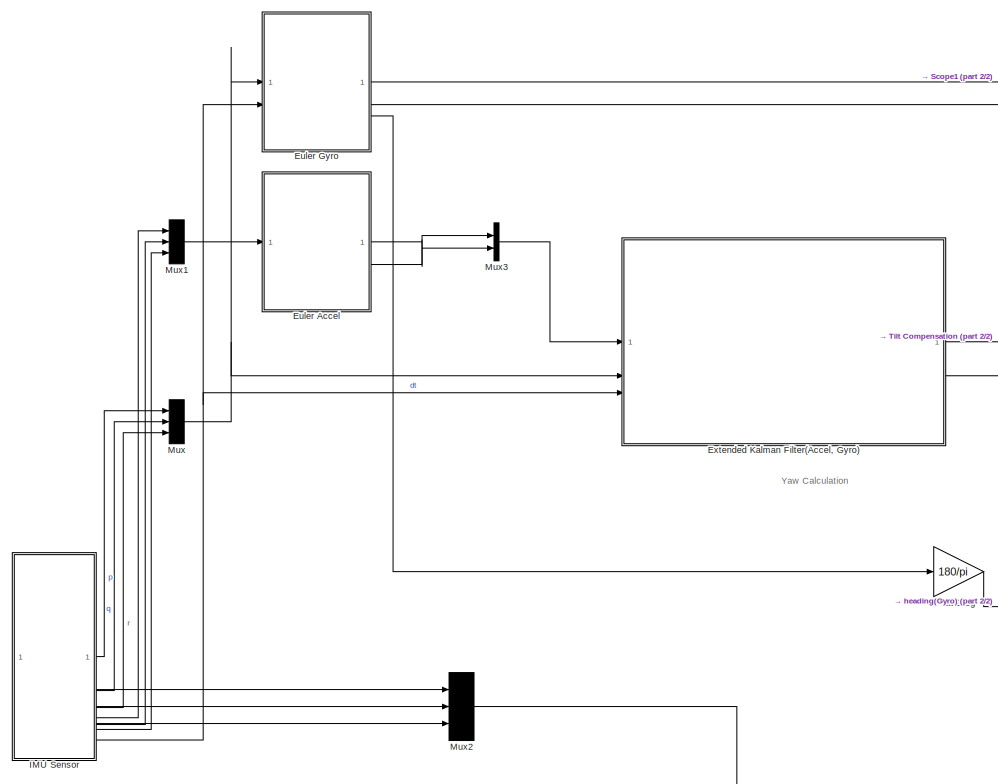
[diagram: root canvas - part 1/2, left side, full height]
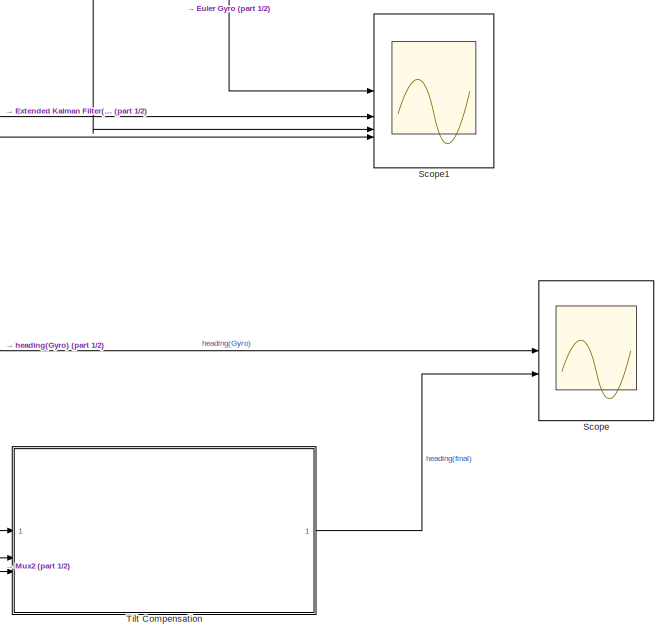
[diagram: root canvas - part 2/2, middle right region]
MODEL slx_b5a51b9716bc
KIND model
CONFIG AbsTol = auto
CONFIG EnableMultiTasking = off
CONFIG FixedStep = auto
CONFIG MaxStep = auto
CONFIG MinStep = auto
CONFIG RelTol = 1e-3
CONFIG SampleTimeConstraint = Unconstrained
CONFIG SolverName = VariableStepAuto
CONFIG StartTime = 0.0
CONFIG StopTime = 220
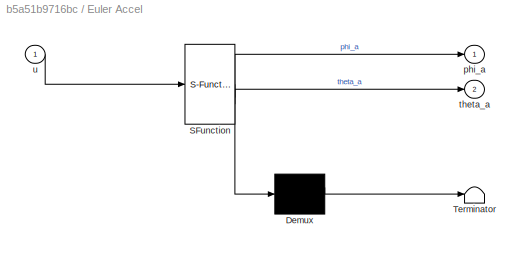
BLOCK [SubSystem] Euler Accel
  ErrorFcn = Stateflow.Translate.translate
  LibrarySourceBlock = simulink/User-Defined\nFunctions/MATLAB Function
  PermitHierarchicalResolution = ExplicitOnly
  SFBlockType = MATLAB Function
  TreatAsAtomicUnit = on
BLOCK [Demux] Euler Accel/ Demux 
  Outputs = 1
BLOCK [S-Function] Euler Accel/ SFunction 
  EnableBusSupport = on
  FunctionName = sf_sfun
  PortCounts = [1 3]
  SFcnIsStateOwnerBlock = off
  SFunctionDeploymentMode = off
  Tag = Stateflow S-Function 3
BLOCK [Terminator] Euler Accel/ Terminator 
BLOCK [Outport] Euler Accel/phi_a
BLOCK [Outport] Euler Accel/theta_a
  Port = 2
BLOCK [Inport] Euler Accel/u
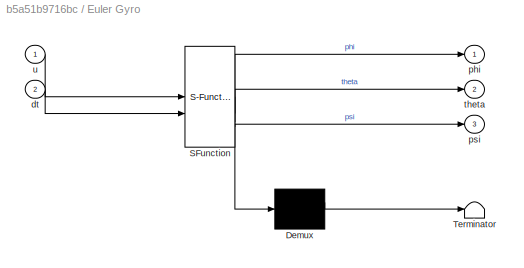
BLOCK [SubSystem] Euler Gyro
  ErrorFcn = Stateflow.Translate.translate
  LibrarySourceBlock = simulink/User-Defined\nFunctions/MATLAB Function
  PermitHierarchicalResolution = ExplicitOnly
  SFBlockType = MATLAB Function
  TreatAsAtomicUnit = on
BLOCK [Demux] Euler Gyro/ Demux 
  Outputs = 1
BLOCK [S-Function] Euler Gyro/ SFunction 
  EnableBusSupport = on
  FunctionName = sf_sfun
  PortCounts = [2 4]
  SFcnIsStateOwnerBlock = off
  SFunctionDeploymentMode = off
  Tag = Stateflow S-Function 1
BLOCK [Terminator] Euler Gyro/ Terminator 
BLOCK [Inport] Euler Gyro/dt
  Port = 2
BLOCK [Outport] Euler Gyro/phi
BLOCK [Outport] Euler Gyro/psi
  Port = 3
BLOCK [Outport] Euler Gyro/theta
  Port = 2
BLOCK [Inport] Euler Gyro/u
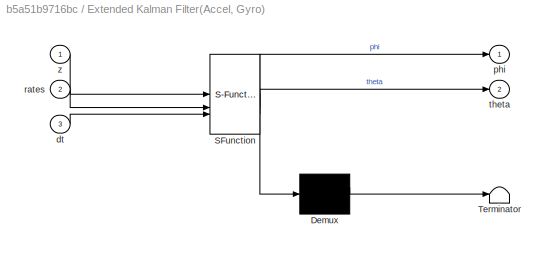
BLOCK [SubSystem] Extended Kalman Filter(Accel, Gyro)
  ErrorFcn = Stateflow.Translate.translate
  LibrarySourceBlock = simulink/User-Defined\nFunctions/MATLAB Function
  PermitHierarchicalResolution = ExplicitOnly
  SFBlockType = MATLAB Function
  TreatAsAtomicUnit = on
BLOCK [Demux] Extended Kalman Filter(Accel, Gyro)/ Demux 
  Outputs = 1
BLOCK [S-Function] Extended Kalman Filter(Accel, Gyro)/ SFunction 
  EnableBusSupport = on
  FunctionName = sf_sfun
  PortCounts = [3 3]
  SFcnIsStateOwnerBlock = off
  SFunctionDeploymentMode = off
  Tag = Stateflow S-Function 2
BLOCK [Terminator] Extended Kalman Filter(Accel, Gyro)/ Terminator 
BLOCK [Inport] Extended Kalman Filter(Accel, Gyro)/dt
  Port = 3
BLOCK [Outport] Extended Kalman Filter(Accel, Gyro)/phi
BLOCK [Inport] Extended Kalman Filter(Accel, Gyro)/rates
  Port = 2
BLOCK [Outport] Extended Kalman Filter(Accel, Gyro)/theta
  Port = 2
BLOCK [Inport] Extended Kalman Filter(Accel, Gyro)/z
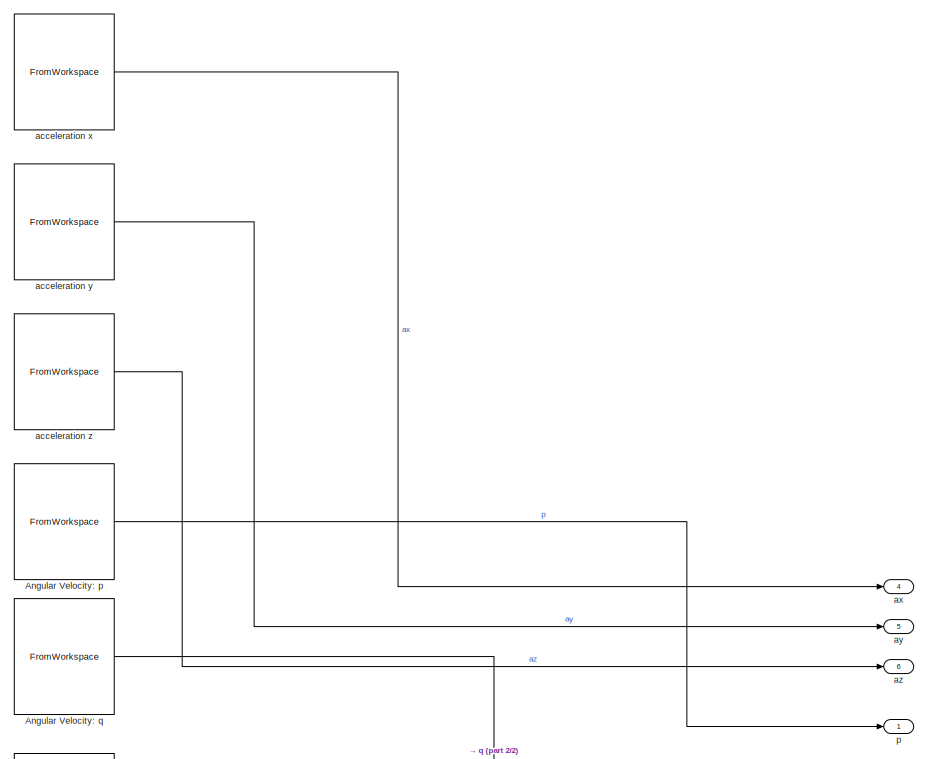
[diagram: IMU Sensor - part 1/2, full width, top band]
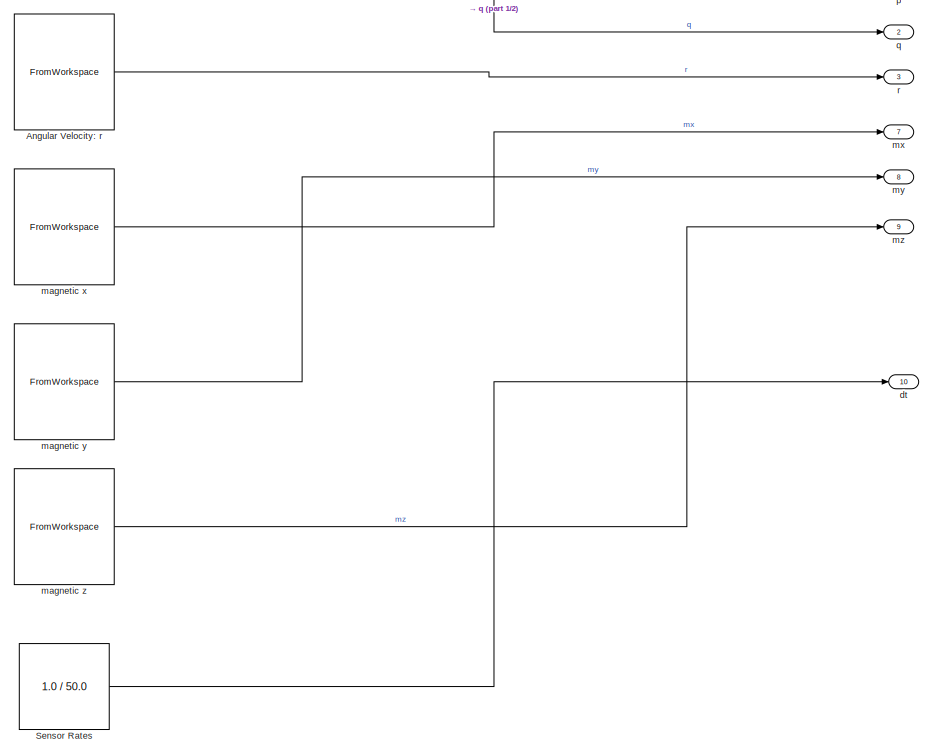
[diagram: IMU Sensor - part 2/2, full width, bottom band]
BLOCK [SubSystem] IMU Sensor
BLOCK [FromWorkspace] IMU Sensor/Angular Velocity: p
  SampleTime = 0.02
  VariableName = p
BLOCK [FromWorkspace] IMU Sensor/Angular Velocity: q
  SampleTime = 0.02
  VariableName = q
BLOCK [FromWorkspace] IMU Sensor/Angular Velocity: r
  SampleTime = 0.02
  VariableName = r
BLOCK [Constant] IMU Sensor/Sensor Rates
  Value = 1.0 / 50.0
BLOCK [FromWorkspace] IMU Sensor/acceleration x
  SampleTime = 0.02
  VariableName = ax
BLOCK [FromWorkspace] IMU Sensor/acceleration y
  SampleTime = 0.02
  VariableName = ay
BLOCK [FromWorkspace] IMU Sensor/acceleration z
  SampleTime = 0.02
  VariableName = az
BLOCK [Outport] IMU Sensor/ax
  Port = 4
BLOCK [Outport] IMU Sensor/ay
  Port = 5
BLOCK [Outport] IMU Sensor/az
  Port = 6
BLOCK [Outport] IMU Sensor/dt
  Port = 10
BLOCK [FromWorkspace] IMU Sensor/magnetic x
  SampleTime = 0.02
  VariableName = mx
BLOCK [FromWorkspace] IMU Sensor/magnetic y
  SampleTime = 0.02
  VariableName = my
BLOCK [FromWorkspace] IMU Sensor/magnetic z
  SampleTime = 0.02
  VariableName = mz
BLOCK [Outport] IMU Sensor/mx
  Port = 7
BLOCK [Outport] IMU Sensor/my
  Port = 8
BLOCK [Outport] IMU Sensor/mz
  Port = 9
BLOCK [Outport] IMU Sensor/p
BLOCK [Outport] IMU Sensor/q
  Port = 2
BLOCK [Outport] IMU Sensor/r
  Port = 3
BLOCK [Mux] Mux
  DisplayOption = signals
  Inputs = 3
BLOCK [Mux] Mux1
  DisplayOption = signals
  Inputs = 3
BLOCK [Mux] Mux2
  DisplayOption = signals
  Inputs = 3
BLOCK [Mux] Mux3
  DisplayOption = bar
  Inputs = 2
BLOCK [Scope] Scope
  Floating = off
  NumInputPorts = 2
  ScopeSpecificationString = Simulink.scopes.TimeScopeBlockCfg('CurrentConfiguration', extmgr.ConfigurationSet(extmgr.Configuration('Core','General UI',true),extmgr.Configuration('Core','Source UI',true),extmgr.Configuration('Sources','WiredSimulink',true),extmgr.Configuration('Visuals','Time Domain',true,'SerializedDisplays',{struct('MinYLimReal','-4680.40662','MaxYLimReal','916.21488','YLabelReal','','MinYLimMag','  0.00000...<+1722ch>
BLOCK [Scope] Scope1
  Floating = off
  NumInputPorts = 4
  ScopeSpecificationString = Simulink.scopes.TimeScopeBlockCfg('CurrentConfiguration', extmgr.ConfigurationSet(extmgr.Configuration('Core','General UI',true),extmgr.Configuration('Core','Source UI',true),extmgr.Configuration('Sources','WiredSimulink',true,'DataLoggingVariableName','ScopeData1'),extmgr.Configuration('Visuals','Time Domain',true,'SerializedDisplays',{struct('MinYLimReal','-136.19616','MaxYLimReal','18.849','YLa...<+1511ch>
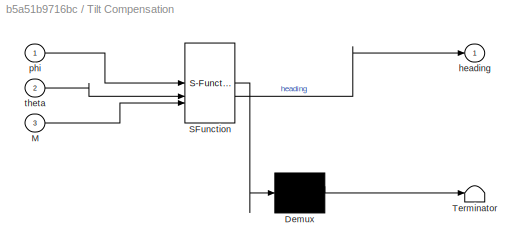
BLOCK [SubSystem] Tilt Compensation
  ErrorFcn = Stateflow.Translate.translate
  LibrarySourceBlock = simulink/User-Defined\nFunctions/MATLAB Function
  PermitHierarchicalResolution = ExplicitOnly
  SFBlockType = MATLAB Function
  TreatAsAtomicUnit = on
BLOCK [Demux] Tilt Compensation/ Demux 
  Outputs = 1
BLOCK [S-Function] Tilt Compensation/ SFunction 
  EnableBusSupport = on
  FunctionName = sf_sfun
  PortCounts = [3 2]
  SFcnIsStateOwnerBlock = off
  SFunctionDeploymentMode = off
  Tag = Stateflow S-Function 4
BLOCK [Terminator] Tilt Compensation/ Terminator 
BLOCK [Inport] Tilt Compensation/M
  Port = 3
BLOCK [Outport] Tilt Compensation/heading
BLOCK [Inport] Tilt Compensation/phi
BLOCK [Inport] Tilt Compensation/theta
  Port = 2
BLOCK [Gain] rad2deg
  Gain = 180/pi
ANNOTATION (root): Yaw Calculation
LINE Euler Accel:1 -> Mux3:1
LINE Euler Accel:2 -> Mux3:2
LINE Euler Gyro:1 -> Scope1:1
LINE Euler Gyro:2 -> Scope1:3
LINE Euler Gyro:3 -> rad2deg:1
NET Extended Kalman Filter(Accel, Gyro):1 -> Scope1:2, Tilt Compensation:1
NET Extended Kalman Filter(Accel, Gyro):2 -> Scope1:4, Tilt Compensation:2
LINE IMU Sensor/Angular Velocity: p:1 -> IMU Sensor/p:1
LINE IMU Sensor/Angular Velocity: q:1 -> IMU Sensor/q:1
LINE IMU Sensor/Angular Velocity: r:1 -> IMU Sensor/r:1
LINE IMU Sensor/Sensor Rates:1 -> IMU Sensor/dt:1
LINE IMU Sensor/acceleration x:1 -> IMU Sensor/ax:1
LINE IMU Sensor/acceleration y:1 -> IMU Sensor/ay:1
LINE IMU Sensor/acceleration z:1 -> IMU Sensor/az:1
LINE IMU Sensor/magnetic x:1 -> IMU Sensor/mx:1
LINE IMU Sensor/magnetic y:1 -> IMU Sensor/my:1
LINE IMU Sensor/magnetic z:1 -> IMU Sensor/mz:1
LINE IMU Sensor:1 -> Mux:1
NET IMU Sensor:10 -> Euler Gyro:2, Extended Kalman Filter(Accel, Gyro):3
LINE IMU Sensor:2 -> Mux:2
LINE IMU Sensor:3 -> Mux:3
LINE IMU Sensor:4 -> Mux1:1
LINE IMU Sensor:5 -> Mux1:2
LINE IMU Sensor:6 -> Mux1:3
LINE IMU Sensor:7 -> Mux2:1
LINE IMU Sensor:8 -> Mux2:2
LINE IMU Sensor:9 -> Mux2:3
LINE Mux1:1 -> Euler Accel:1
LINE Mux2:1 -> Tilt Compensation:3
LINE Mux3:1 -> Extended Kalman Filter(Accel, Gyro):1
NET Mux:1 -> Euler Gyro:1, Extended Kalman Filter(Accel, Gyro):2
LINE Tilt Compensation:1 -> Scope:2
LINE rad2deg:1 -> Scope:1
note: NET lines group one-source signal fan-out (src -> all destinations, sorted); 1:1 wires keep LINE
CHART Euler Gyro states=1 transitions=1
  STATE_LABEL 'eML_blk_kernel()'
  STATE_LABEL 'SCRIPT:\nfunction [phi, theta, psi] = EulerGyro(u, dt)\npersistent prevPhi prevTheta prevPsi\n\nif isempty(prevPhi)\n    prevPhi = 0;\n    prevTheta = 0;\n    prevPsi = 0;\nend\n\np = u(1);\nq = u(2);\nr = u(3);\n\nrotationMat = [1, sin(prevPhi)*tan(prevTheta), cos(prevPhi)*tan(prevTheta)\n               0, cos(prevPhi), -sin(prevPhi) \n               0, sin(prevPhi)/cos(prevTheta), cos(prevPhi)/cos(prevTheta)];\n...<+173ch>'
CHART Extended Kalman Filter(Accel, Gyro) states=1 transitions=1
  STATE_LABEL 'eML_blk_kernel()'
  STATE_LABEL "SCRIPT:\nfunction [phi, theta] = EulerEKF(z, rates, dt)\n\npersistent H Q R\npersistent x_hat P\npersistent firstRun\n\n\nif isempty(firstRun)\n    % accelerometer can't measure yaw rate\n    H = [1, 0, 0;\n        0, 1, 0];\n    \n    % system noise\n    Q = [0.0001, 0, 0;\n         0, 0.0001, 0;\n         0, 0, 0.1];\n    \n    % measurement noise\n    R = 10.0 * eye(2);\n\n    x_hat = [0, 0, 0]'; % initial state va...<+1430ch>"
CHART Euler Accel states=1 transitions=1
  STATE_LABEL 'eML_blk_kernel()'
  STATE_LABEL 'SCRIPT:\nfunction [phi_a, theta_a] = EulerAccel(u)\n\nax = u(1);\nay = u(2);\naz = u(3);\n\nphi_a = atan2(ay, az);\ntheta_a = atan2(ax, sqrt(ay^2 + az^2));'
CHART Tilt Compensation states=1 transitions=1
  STATE_LABEL 'eML_blk_kernel()'
  STATE_LABEL 'SCRIPT:\nfunction heading = TileCompensation(phi, theta, M)\n\nxm = M(1);\nym = M(2);\nzm = M(3);\n\n\nxm2 = (xm * cos(theta)) + (zm * sin(theta));\nym2 = (xm * sin(phi)) * (sin(theta) + ym * cos(phi)) - zm * sin(phi) * cos(phi);\n\n\nheading = atan2(ym2, xm2) * (180 / pi);\n'
CHART  states=0 transitions=0
CHART  states=0 transitions=0
CHART  states=0 transitions=0
CHART  states=0 transitions=0
